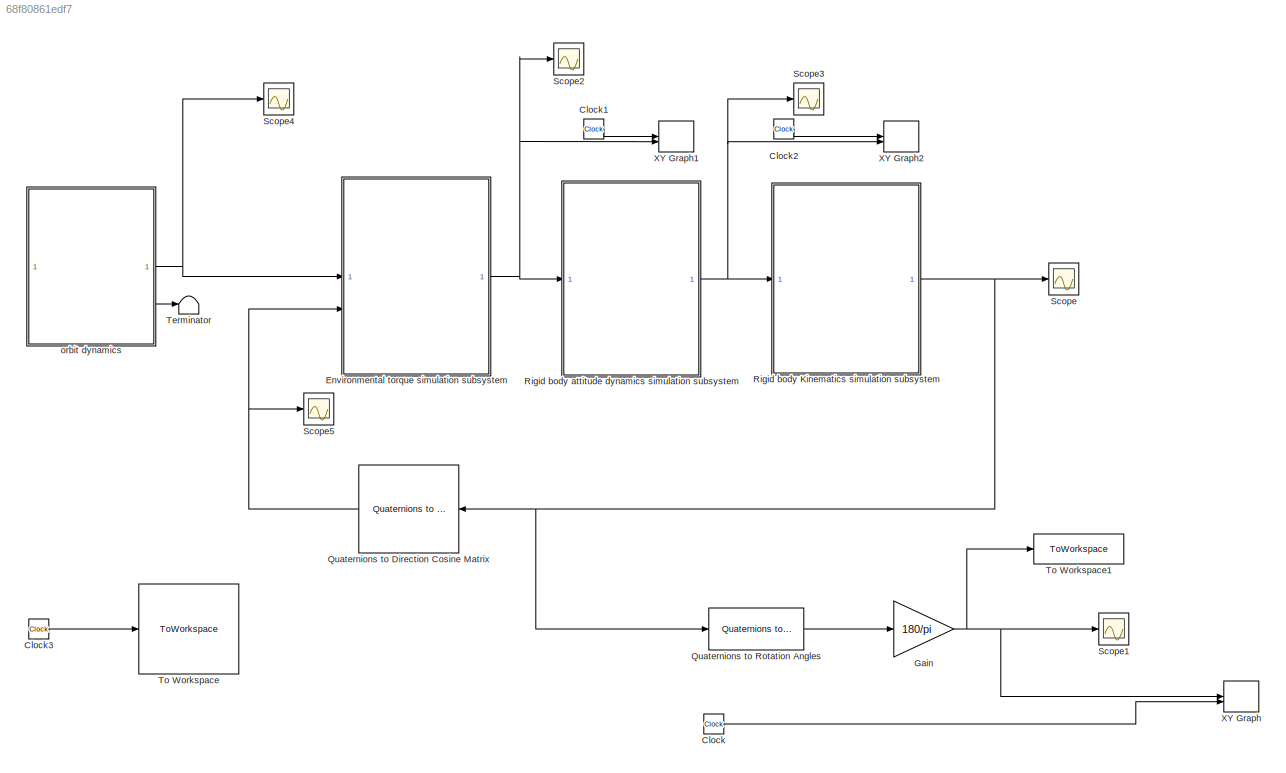
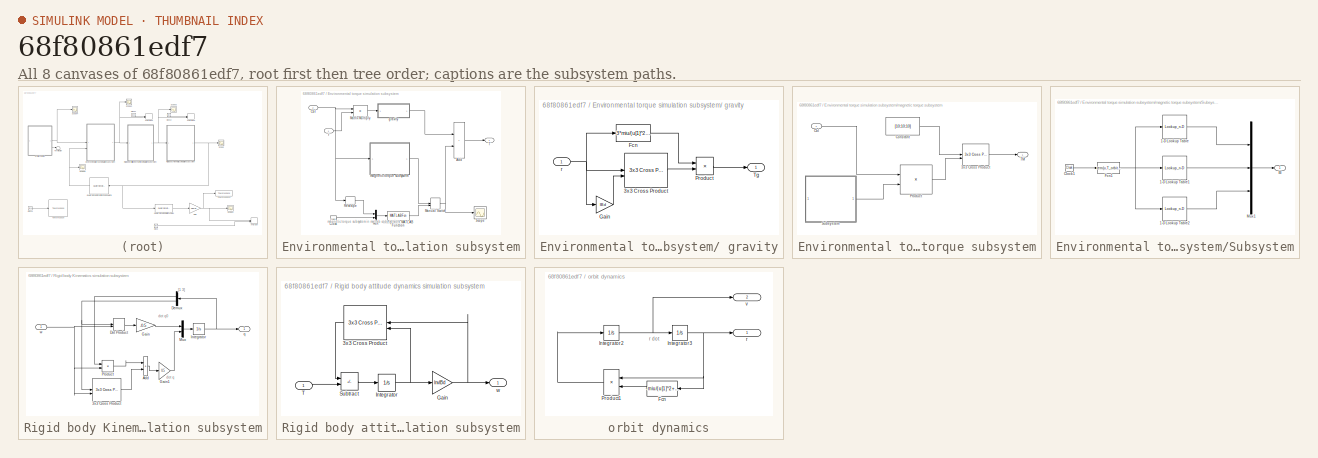
[diagram: thumbnail index - all 8 canvases of the model, root first then tree order]
MODEL slx_68f80861edf7
KIND model
CONFIG AbsTol = auto
CONFIG EnableMultiTasking = off
CONFIG FixedStep = auto
CONFIG InitFcn = run data_initialize.m
CONFIG MaxStep = auto
CONFIG MinStep = auto
CONFIG RelTol = 1e-3
CONFIG SampleTimeConstraint = Unconstrained
CONFIG SolverName = VariableStepAuto
CONFIG StartTime = 0.0
CONFIG StopFcn = figure;\nsubplot(3,1,1);\nplot(out.t,out.error_anles(:,1));\nylabel('yaw(deg)');\nxlabel('simtime(s)');\n\nsubplot(3,1,2);\nplot(out.t,out.error_anles(:,2));\nylabel('pitch(deg)');\nxlabel('simtime(s)');\n\nsubplot(3,1,3);\nplot(out.t,out.error_anles(:,3));\nylabel('roll(deg)');\nxlabel('simtime(s)');\n
CONFIG StopTime = 3600
BLOCK [Clock] Clock
BLOCK [Clock] Clock1
BLOCK [Clock] Clock2
BLOCK [Clock] Clock3
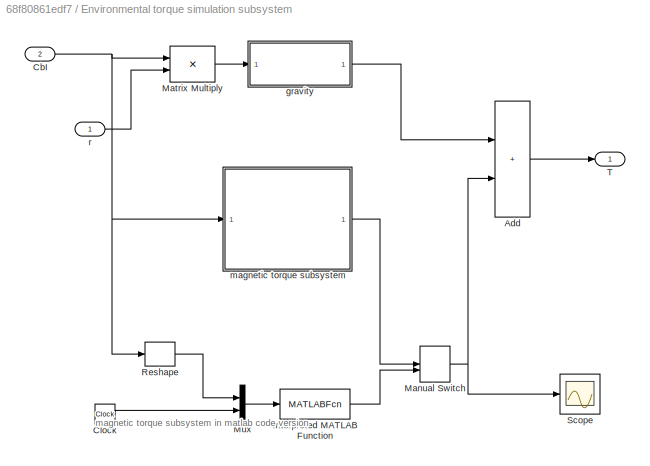
BLOCK [SubSystem] Environmental torque simulation subsystem
BLOCK [SubSystem] Environmental torque simulation subsystem/ gravity
BLOCK [Reference] Environmental torque simulation subsystem/ gravity/3x3 Cross Product  REF=sharedutil/3x3 Cross Product
  LibrarySourceBlock = aerolibutil/3x3 Cross Product
  SourceBlock = sharedutil/3x3 Cross Product
  SourceType = CrossProduct
BLOCK [Fcn] Environmental torque simulation subsystem/ gravity/Fcn
  Expr = 3*miu/(u[1]^2+u[2]^2+u[3]^2)^2.5
BLOCK [Gain] Environmental torque simulation subsystem/ gravity/Gain
  Gain = IBd
  Multiplication = Matrix(K*u)
BLOCK [Product] Environmental torque simulation subsystem/ gravity/Product
BLOCK [Outport] Environmental torque simulation subsystem/ gravity/Tg
BLOCK [Inport] Environmental torque simulation subsystem/ gravity/r
BLOCK [Sum] Environmental torque simulation subsystem/Add
  IconShape = rectangular
BLOCK [Inport] Environmental torque simulation subsystem/CbI
  Port = 2
BLOCK [Clock] Environmental torque simulation subsystem/Clock
BLOCK [MATLABFcn] Environmental torque simulation subsystem/Interpreted MATLAB Function
  MATLABFcn = magnetic_Torque(u)
  OutputDimensions = 3
BLOCK [ManualSwitch] Environmental torque simulation subsystem/Manual Switch
BLOCK [Product] Environmental torque simulation subsystem/Matrix Multiply
  Multiplication = Matrix(*)
BLOCK [Mux] Environmental torque simulation subsystem/Mux
  DisplayOption = bar
  Inputs = 2
BLOCK [Reshape] Environmental torque simulation subsystem/Reshape
BLOCK [Scope] Environmental torque simulation subsystem/Scope
  Floating = off
  NumInputPorts = 2
  ScopeSpecificationString = Simulink.scopes.TimeScopeBlockCfg('CurrentConfiguration', extmgr.ConfigurationSet(extmgr.Configuration('Core','General UI',true),extmgr.Configuration('Core','Source UI',true),extmgr.Configuration('Sources','WiredSimulink',true,'DataLoggingVariableName','ScopeData2'),extmgr.Configuration('Visuals','Time Domain',true,'SerializedDisplays',{struct('MinYLimReal','-0.00058','MaxYLimReal','0.00055','YLab...<+1543ch>
BLOCK [Outport] Environmental torque simulation subsystem/T
BLOCK [SubSystem] Environmental torque simulation subsystem/magnetic torque subsystem
BLOCK [Reference] Environmental torque simulation subsystem/magnetic torque subsystem/3x3 Cross Product  REF=sharedutil/3x3 Cross Product
  LibrarySourceBlock = aerolibutil/3x3 Cross Product
  SourceBlock = sharedutil/3x3 Cross Product
  SourceType = CrossProduct
BLOCK [Inport] Environmental torque simulation subsystem/magnetic torque subsystem/CbI
BLOCK [Constant] Environmental torque simulation subsystem/magnetic torque subsystem/Constant
  Value = [10;10;10]
BLOCK [Product] Environmental torque simulation subsystem/magnetic torque subsystem/Product
  Multiplication = Matrix(*)
BLOCK [SubSystem] Environmental torque simulation subsystem/magnetic torque subsystem/Subsystem
BLOCK [Lookup_n-D] Environmental torque simulation subsystem/magnetic torque subsystem/Subsystem/1-D Lookup Table
  BreakpointsForDimension1 = [1 2 3 4 5 6 7 8 9 10 11 12 13 14 15 16 17 18 19 20 21 22 23 24 25 26 27 28 29 30 31 32 33 34 35 36 37 38 39 40 41 42 43 44 45 46 47 48 49 50 51 52 53 54 55 56 57 58 59 60 61 62 63 64 65 66 67 68 69 70 71 72 73 74 75 76 77 78 79 80 81 82 83 84 85 86 87 88 89 90 91 92 93 94 95 96 97 98 99 100 101 102 103 104 105 106 107 108 109 110 111 112 113 114 115 116 117 118 119 120 121 122 123 124 125 126 127...<+725ch>  <repeated x3 — deduplicated; at blocks: 1-D Lookup Table, 1-D Lookup Table1, 1-D Lookup Table2>
  InputPortMap = u0
  InternalRulePriority = Speed
  InterpMethod = Linear Lagrange
  NumberOfTableDimensions = 1
  RndMeth = Simplest
  Table = [-2.55122059735e-05;-2.53831368732e-05;-2.52235856156e-05;-2.50340039571e-05;-2.48149904855e-05;-2.45672896141e-05;-2.42917889233e-05;-2.39895148346e-05;-2.36616266287e-05;-2.33094088488e-05;-2.29342621597e-05;-2.53777161388e-05;-2.51118086265e-05;-2.48212361178e-05;-2.4506733135e-05;-2.41691136071e-05;-2.38092685829e-05;-2.34281630635e-05;-2.30268319106e-05;-2.26063748081e-05;-2.21679502833e-05;-...<+5116ch>
BLOCK [Lookup_n-D] Environmental torque simulation subsystem/magnetic torque subsystem/Subsystem/1-D Lookup Table1
  InputPortMap = u0
  InternalRulePriority = Speed
  InterpMethod = Linear Lagrange
  NumberOfTableDimensions = 1
  RndMeth = Simplest
  Table = [5.3943408503e-06;5.451945977e-06;5.5099840032e-06;5.5686785233e-06;5.6282573934e-06;5.6889497235e-06;5.7509828588e-06;5.8145793907e-06;5.8799542372e-06;5.94731183e-06;6.0168434444e-06;4.7087073539e-06;4.7375390485e-06;4.7708591853e-06;4.8088064599e-06;4.8514966586e-06;4.8990214362e-06;4.9514473778e-06;5.0088153506e-06;5.0711401447e-06;5.1384103978e-06;5.2105887907e-06;5.2876124951e-06;5.369393851...<+4824ch>
BLOCK [Lookup_n-D] Environmental torque simulation subsystem/magnetic torque subsystem/Subsystem/1-D Lookup Table2
  InputPortMap = u0
  InternalRulePriority = Speed
  InterpMethod = Linear Lagrange
  NumberOfTableDimensions = 1
  RndMeth = Simplest
  Table = [-4.961439257e-07;-1.7357945627e-06;-2.9641301952e-06;-4.1787546858e-06;-5.3773102582e-06;-6.5574946903e-06;-7.7170784681e-06;-8.8539216579e-06;-9.9659902549e-06;-1.10513717659e-05;-1.21082897926e-05;-1.07596031871e-05;-1.19663117919e-05;-1.31540841681e-05;-1.43212395271e-05;-1.54661580047e-05;-1.65872892927e-05;-1.76831612531e-05;-1.87523883599e-05;-1.9793679804e-05;-2.08058470856e-05;-2.17878109...<+5224ch>
BLOCK [Outport] Environmental torque simulation subsystem/magnetic torque subsystem/Subsystem/BI
BLOCK [Clock] Environmental torque simulation subsystem/magnetic torque subsystem/Subsystem/Clock1
BLOCK [Fcn] Environmental torque simulation subsystem/magnetic torque subsystem/Subsystem/Fcn1
  Expr = rem(u,T_orbit)*308/T_orbit
BLOCK [Mux] Environmental torque simulation subsystem/magnetic torque subsystem/Subsystem/Mux1
  DisplayOption = bar
  Inputs = 3
BLOCK [Outport] Environmental torque simulation subsystem/magnetic torque subsystem/TM
BLOCK [Inport] Environmental torque simulation subsystem/r
  PortDimensions = 3
BLOCK [Gain] Gain
  Gain = 180/pi
BLOCK [Reference] Quaternions to Direction Cosine Matrix  REF=sharedtransform/Quaternions to 
Direction Cosine Matrix
  LibrarySourceBlock = aerolibtransform2/Quaternions to \nDirection Cosine Matrix
  SourceBlock = sharedtransform/Quaternions to \nDirection Cosine Matrix
  SourceType = Quaternion2DCM
BLOCK [Reference] Quaternions to Rotation Angles  REF=sharedtransform/Quaternions to Rotation Angles
  AttributesFormatString = Rotation Order: %<rotationOrder>
  LibrarySourceBlock = aerolibtransform2/Quaternions to Rotation Angles
  SourceBlock = sharedtransform/Quaternions to Rotation Angles
  SourceType = Quat2Ang
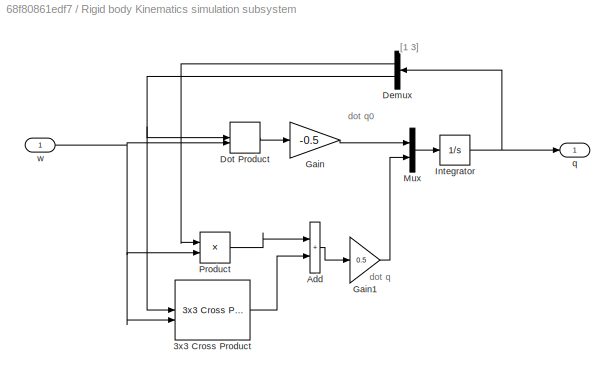
BLOCK [SubSystem] Rigid body Kinematics simulation subsystem
BLOCK [Reference] Rigid body Kinematics simulation subsystem/3x3 Cross Product  REF=sharedutil/3x3 Cross Product
  LibrarySourceBlock = aerolibutil/3x3 Cross Product
  SourceBlock = sharedutil/3x3 Cross Product
  SourceType = CrossProduct
BLOCK [Sum] Rigid body Kinematics simulation subsystem/Add
  IconShape = rectangular
BLOCK [Demux] Rigid body Kinematics simulation subsystem/Demux
  Outputs = 2
BLOCK [DotProduct] Rigid body Kinematics simulation subsystem/Dot Product
  OutDataTypeStr = Inherit: Inherit via internal rule
BLOCK [Gain] Rigid body Kinematics simulation subsystem/Gain
  Gain = -0.5
BLOCK [Gain] Rigid body Kinematics simulation subsystem/Gain1
  Gain = 0.5
BLOCK [Integrator] Rigid body Kinematics simulation subsystem/Integrator
  InitialCondition = Qb0
BLOCK [Mux] Rigid body Kinematics simulation subsystem/Mux
  DisplayOption = bar
  Inputs = 2
BLOCK [Product] Rigid body Kinematics simulation subsystem/Product
BLOCK [Outport] Rigid body Kinematics simulation subsystem/q
BLOCK [Inport] Rigid body Kinematics simulation subsystem/w
  PortDimensions = 3
BLOCK [SubSystem] Rigid body attitude dynamics simulation subsystem
BLOCK [Reference] Rigid body attitude dynamics simulation subsystem/3x3 Cross Product  REF=sharedutil/3x3 Cross Product
  LibrarySourceBlock = aerolibutil/3x3 Cross Product
  SourceBlock = sharedutil/3x3 Cross Product
  SourceType = CrossProduct
BLOCK [Gain] Rigid body attitude dynamics simulation subsystem/Gain
  Gain = InvIBd
  Multiplication = Matrix(K*u)
BLOCK [Integrator] Rigid body attitude dynamics simulation subsystem/Integrator
  InitialCondition = Hb0
BLOCK [Sum] Rigid body attitude dynamics simulation subsystem/Subtract
  IconShape = rectangular
  Inputs = -+
BLOCK [Inport] Rigid body attitude dynamics simulation subsystem/T
BLOCK [Outport] Rigid body attitude dynamics simulation subsystem/w
BLOCK [Scope] Scope
  Floating = off
  NumInputPorts = 1
  ScopeSpecificationString = Simulink.scopes.TimeScopeBlockCfg('CurrentConfiguration', extmgr.ConfigurationSet(extmgr.Configuration('Core','General UI',true),extmgr.Configuration('Core','Source UI',true),extmgr.Configuration('Sources','WiredSimulink',true),extmgr.Configuration('Visuals','Time Domain',true,'SerializedDisplays',{struct('MinYLimReal','-1.08023','MaxYLimReal','1.23114','YLabelReal','','MinYLimMag','0.00000','MaxY...<+1562ch>
BLOCK [Scope] Scope1
  Floating = off
  NumInputPorts = 1
  ScopeSpecificationString = Simulink.scopes.TimeScopeBlockCfg('CurrentConfiguration', extmgr.ConfigurationSet(extmgr.Configuration('Core','General UI',true),extmgr.Configuration('Core','Source UI',true),extmgr.Configuration('Sources','WiredSimulink',true,'DataLoggingVariableName','ScopeData1'),extmgr.Configuration('Visuals','Time Domain',true,'SerializedDisplays',{struct('MinYLimReal','-200','MaxYLimReal','200','YLabelReal',...<+1494ch>
BLOCK [Scope] Scope2
  Floating = off
  NumInputPorts = 1
  ScopeSpecificationString = Simulink.scopes.TimeScopeBlockCfg('CurrentConfiguration', extmgr.ConfigurationSet(extmgr.Configuration('Core','General UI',true),extmgr.Configuration('Core','Source UI',true),extmgr.Configuration('Sources','WiredSimulink',true,'DataLoggingVariableName','ScopeData1'),extmgr.Configuration('Visuals','Time Domain',true,'SerializedDisplays',{struct('MinYLimReal','-0.00059','MaxYLimReal','0.00055','YLab...<+1450ch>
BLOCK [Scope] Scope3
  Floating = off
  NumInputPorts = 1
  ScopeSpecificationString = Simulink.scopes.TimeScopeBlockCfg('CurrentConfiguration', extmgr.ConfigurationSet(extmgr.Configuration('Core','General UI',true),extmgr.Configuration('Core','Source UI',true),extmgr.Configuration('Sources','WiredSimulink',true,'DataLoggingVariableName','ScopeData2'),extmgr.Configuration('Visuals','Time Domain',true,'SerializedDisplays',{struct('MinYLimReal','-0.00392','MaxYLimReal','0.00432','YLab...<+1477ch>
BLOCK [Scope] Scope4
  Floating = off
  NumInputPorts = 1
  ScopeSpecificationString = Simulink.scopes.TimeScopeBlockCfg('CurrentConfiguration', extmgr.ConfigurationSet(extmgr.Configuration('Core','General UI',true),extmgr.Configuration('Core','Source UI',true),extmgr.Configuration('Sources','WiredSimulink',true,'DataLoggingVariableName','ScopeData1'),extmgr.Configuration('Visuals','Time Domain',true,'SerializedDisplays',{struct('MinYLimReal','-9103024.19121','MaxYLimReal','9125711....<+1465ch>
BLOCK [Scope] Scope5
  Floating = off
  NumInputPorts = 1
  ScopeSpecificationString = Simulink.scopes.TimeScopeBlockCfg('CurrentConfiguration', extmgr.ConfigurationSet(extmgr.Configuration('Core','General UI',true),extmgr.Configuration('Core','Source UI',true),extmgr.Configuration('Sources','WiredSimulink',true,'DataLoggingVariableName','ScopeData3'),extmgr.Configuration('Visuals','Time Domain',true,'SerializedDisplays',{struct('MinYLimReal','-1.24944','MaxYLimReal','1.24994','YLab...<+1822ch>
BLOCK [Terminator] Terminator
BLOCK [ToWorkspace] To Workspace
  FixptAsFi = on
  MaxDataPoints = inf
  SampleTime = -1
  VariableName = t
BLOCK [ToWorkspace] To Workspace1
  FixptAsFi = on
  MaxDataPoints = inf
  SampleTime = -1
  VariableName = error_anles
BLOCK [Record] XY Graph
  CompatibilityTag = XY
  FileSettingsInternal = {"entries":[{"content":{"excelSettings":{"content":{},"type":"Streamout.ExcelSettings"}},"type":"Streamout.FileSettingStorage","uuid":"d5935534-3018-4682-9264-9e126ec8adf6"}],"packageUris":["http://schema.mathworks.com/mf0/streamout_blocks/R2020a"],"version":"1.0"}
  Layout = [1 1]
  SignalsInternal = {"entries":[{"content":{"signals":[{"content":{"blockPath":["satsim/XY Graph"],"channel":[],"dimensions":[3],"domain":"satsim/XY Graph","hasChildren":true,"lineColor":"#fe330a","plots":[],"port":1,"sid":[""],"signalID":166,"signalName":"Gain"},"type":"RecordBlkView.Signal","uuid":"ff8d8c7c-5dc9-4f5c-8804-467ea547fb30"},{"content":{"blockPath":["satsim/XY Graph"],"channel":[1],"dimensions":[3],"dom...<+1218ch>
  VisualizationBindings = {"xyplotplugin":{"info":[{"series":[{"bindingParametersList":[{"parameter":"X-Axis","signalID":171,"signalName":"Clock"},{"parameter":"Y-Axis","signalID":167,"signalName":"Gain(1)"}],"seriesID":65218},{"bindingParametersList":[{"parameter":"X-Axis","signalID":171,"signalName":"Clock"},{"parameter":"Y-Axis","signalID":223,"signalName":"Gain(2)"}],"seriesID":37351},{"bindingParametersList":[{"parame...<+149ch>
BLOCK [Record] XY Graph1
  CompatibilityTag = XY
  FileSettingsInternal = {"entries":[{"content":{"excelSettings":{"content":{},"type":"Streamout.ExcelSettings"}},"type":"Streamout.FileSettingStorage","uuid":"255aa934-7037-4e8a-b86c-47c5749866d0"}],"packageUris":["http://schema.mathworks.com/mf0/streamout_blocks/R2020a"],"version":"1.0"}
  Layout = [1 1]
  SignalsInternal = {"entries":[{"content":{"signals":[{"content":{"blockPath":["satsim/XY Graph1"],"channel":[],"dimensions":[1],"domain":"satsim/XY Graph1","lineColor":"#139fff","plots":[1],"port":1,"sid":[""],"signalID":175,"signalName":"Clock1"},"type":"RecordBlkView.Signal","uuid":"f30088d5-5af3-48de-8442-de16e8626a94"},{"content":{"blockPath":["satsim/XY Graph1"],"channel":[],"dimensions":[3],"domain":"satsim/X...<+1377ch>
  VisualizationBindings = {"xyplotplugin":{"info":[{"series":[{"bindingParametersList":[{"parameter":"X-Axis","signalID":175,"signalName":"Clock1"},{"parameter":"Y-Axis","signalID":225,"signalName":"Environmental torque simulation subsystem(2)"}],"seriesID":232},{"bindingParametersList":[{"parameter":"X-Axis","signalID":175,"signalName":"Clock1"},{"parameter":"Y-Axis","signalID":180,"signalName":"Environmental torque simul...<+261ch>
BLOCK [Record] XY Graph2
  CompatibilityTag = XY
  FileSettingsInternal = {"entries":[{"content":{"excelSettings":{"content":{},"type":"Streamout.ExcelSettings"}},"type":"Streamout.FileSettingStorage","uuid":"a904b502-5531-4921-b81d-345613b13fcd"}],"packageUris":["http://schema.mathworks.com/mf0/streamout_blocks/R2020a"],"version":"1.0"}
  Layout = [1 1]
  SignalsInternal = {"entries":[{"content":{"signals":[{"content":{"blockPath":["satsim/XY Graph2"],"channel":[],"dimensions":[1],"domain":"satsim/XY Graph2","lineColor":"#139fff","plots":[1],"port":1,"sid":[""],"signalID":184,"signalName":"Clock2"},"type":"RecordBlkView.Signal","uuid":"078e9baf-7ef4-4016-bcd0-3751340707a6"},{"content":{"blockPath":["satsim/XY Graph2"],"channel":[],"dimensions":[3],"domain":"satsim/X...<+1409ch>
  VisualizationBindings = {"xyplotplugin":{"info":[{"series":[{"bindingParametersList":[{"parameter":"X-Axis","signalID":184,"signalName":"Clock2"},{"parameter":"Y-Axis","signalID":228,"signalName":"Rigid body attitude dynamics simulation subsystem(3)"}],"seriesID":16914},{"bindingParametersList":[{"parameter":"X-Axis","signalID":184,"signalName":"Clock2"},{"parameter":"Y-Axis","signalID":227,"signalName":"Rigid body attit...<+285ch>
BLOCK [SubSystem] orbit dynamics
BLOCK [Fcn] orbit dynamics/Fcn
  Expr = -miu/(u[1]^2+u[2]^2+u[3]^2)^1.5
BLOCK [Integrator] orbit dynamics/Integrator2
  InitialCondition = v0
BLOCK [Integrator] orbit dynamics/Integrator3
  InitialCondition = r0
BLOCK [Product] orbit dynamics/Product1
BLOCK [Outport] orbit dynamics/r
BLOCK [Outport] orbit dynamics/v
  Port = 2
ANNOTATION Environmental torque simulation subsystem: magnetic torque subsystem in matlab code version
ANNOTATION Rigid body Kinematics simulation subsystem: [1 3]
ANNOTATION Rigid body Kinematics simulation subsystem: dot q
ANNOTATION Rigid body Kinematics simulation subsystem: dot q0
ANNOTATION orbit dynamics: r dot
LINE Clock1:1 -> XY Graph1:1
LINE Clock2:1 -> XY Graph2:1
LINE Clock3:1 -> To Workspace:1
LINE Clock:1 -> XY Graph:2
LINE Environmental torque simulation subsystem/ gravity/3x3 Cross Product:1 -> Environmental torque simulation subsystem/ gravity/Product:2
LINE Environmental torque simulation subsystem/ gravity/Fcn:1 -> Environmental torque simulation subsystem/ gravity/Product:1
LINE Environmental torque simulation subsystem/ gravity/Gain:1 -> Environmental torque simulation subsystem/ gravity/3x3 Cross Product:2
LINE Environmental torque simulation subsystem/ gravity/Product:1 -> Environmental torque simulation subsystem/ gravity/Tg:1
NET Environmental torque simulation subsystem/ gravity/r:1 -> Environmental torque simulation subsystem/ gravity/3x3 Cross Product:1, Environmental torque simulation subsystem/ gravity/Fcn:1, Environmental torque simulation subsystem/ gravity/Gain:1
LINE Environmental torque simulation subsystem/ gravity:1 -> Environmental torque simulation subsystem/Add:1
LINE Environmental torque simulation subsystem/Add:1 -> Environmental torque simulation subsystem/T:1
NET Environmental torque simulation subsystem/CbI:1 -> Environmental torque simulation subsystem/Matrix Multiply:1, Environmental torque simulation subsystem/Reshape:1, Environmental torque simulation subsystem/magnetic torque subsystem:1
LINE Environmental torque simulation subsystem/Clock:1 -> Environmental torque simulation subsystem/Mux:2
LINE Environmental torque simulation subsystem/Interpreted MATLAB Function:1 -> Environmental torque simulation subsystem/Manual Switch:2
NET Environmental torque simulation subsystem/Manual Switch:1 -> Environmental torque simulation subsystem/Add:2, Environmental torque simulation subsystem/Scope:1
LINE Environmental torque simulation subsystem/Matrix Multiply:1 -> Environmental torque simulation subsystem/ gravity:1
LINE Environmental torque simulation subsystem/Mux:1 -> Environmental torque simulation subsystem/Interpreted MATLAB Function:1
LINE Environmental torque simulation subsystem/Reshape:1 -> Environmental torque simulation subsystem/Mux:1
LINE Environmental torque simulation subsystem/magnetic torque subsystem/3x3 Cross Product:1 -> Environmental torque simulation subsystem/magnetic torque subsystem/TM:1
LINE Environmental torque simulation subsystem/magnetic torque subsystem/CbI:1 -> Environmental torque simulation subsystem/magnetic torque subsystem/Product:1
LINE Environmental torque simulation subsystem/magnetic torque subsystem/Constant:1 -> Environmental torque simulation subsystem/magnetic torque subsystem/3x3 Cross Product:1
LINE Environmental torque simulation subsystem/magnetic torque subsystem/Product:1 -> Environmental torque simulation subsystem/magnetic torque subsystem/3x3 Cross Product:2
LINE Environmental torque simulation subsystem/magnetic torque subsystem/Subsystem/1-D Lookup Table1:1 -> Environmental torque simulation subsystem/magnetic torque subsystem/Subsystem/Mux1:2
LINE Environmental torque simulation subsystem/magnetic torque subsystem/Subsystem/1-D Lookup Table2:1 -> Environmental torque simulation subsystem/magnetic torque subsystem/Subsystem/Mux1:3
LINE Environmental torque simulation subsystem/magnetic torque subsystem/Subsystem/1-D Lookup Table:1 -> Environmental torque simulation subsystem/magnetic torque subsystem/Subsystem/Mux1:1
LINE Environmental torque simulation subsystem/magnetic torque subsystem/Subsystem/Clock1:1 -> Environmental torque simulation subsystem/magnetic torque subsystem/Subsystem/Fcn1:1
NET Environmental torque simulation subsystem/magnetic torque subsystem/Subsystem/Fcn1:1 -> Environmental torque simulation subsystem/magnetic torque subsystem/Subsystem/1-D Lookup Table1:1, Environmental torque simulation subsystem/magnetic torque subsystem/Subsystem/1-D Lookup Table2:1, Environmental torque simulation subsystem/magnetic torque subsystem/Subsystem/1-D Lookup Table:1
LINE Environmental torque simulation subsystem/magnetic torque subsystem/Subsystem/Mux1:1 -> Environmental torque simulation subsystem/magnetic torque subsystem/Subsystem/BI:1
LINE Environmental torque simulation subsystem/magnetic torque subsystem/Subsystem:1 -> Environmental torque simulation subsystem/magnetic torque subsystem/Product:2
LINE Environmental torque simulation subsystem/magnetic torque subsystem:1 -> Environmental torque simulation subsystem/Manual Switch:1
LINE Environmental torque simulation subsystem/r:1 -> Environmental torque simulation subsystem/Matrix Multiply:2
NET Environmental torque simulation subsystem:1 -> Rigid body attitude dynamics simulation subsystem:1, Scope2:1, XY Graph1:2
NET Gain:1 -> Scope1:1, To Workspace1:1, XY Graph:1
NET Quaternions to Direction Cosine Matrix:1 -> Environmental torque simulation subsystem:2, Scope5:1
LINE Quaternions to Rotation Angles:1 -> Gain:1
LINE Rigid body Kinematics simulation subsystem/3x3 Cross Product:1 -> Rigid body Kinematics simulation subsystem/Add:2
LINE Rigid body Kinematics simulation subsystem/Add:1 -> Rigid body Kinematics simulation subsystem/Gain1:1
LINE Rigid body Kinematics simulation subsystem/Demux:1 -> Rigid body Kinematics simulation subsystem/Product:1
NET Rigid body Kinematics simulation subsystem/Demux:2 -> Rigid body Kinematics simulation subsystem/3x3 Cross Product:1, Rigid body Kinematics simulation subsystem/Dot Product:1
LINE Rigid body Kinematics simulation subsystem/Dot Product:1 -> Rigid body Kinematics simulation subsystem/Gain:1
LINE Rigid body Kinematics simulation subsystem/Gain1:1 -> Rigid body Kinematics simulation subsystem/Mux:2
LINE Rigid body Kinematics simulation subsystem/Gain:1 -> Rigid body Kinematics simulation subsystem/Mux:1
NET Rigid body Kinematics simulation subsystem/Integrator:1 -> Rigid body Kinematics simulation subsystem/Demux:1, Rigid body Kinematics simulation subsystem/q:1
LINE Rigid body Kinematics simulation subsystem/Mux:1 -> Rigid body Kinematics simulation subsystem/Integrator:1
LINE Rigid body Kinematics simulation subsystem/Product:1 -> Rigid body Kinematics simulation subsystem/Add:1
NET Rigid body Kinematics simulation subsystem/w:1 -> Rigid body Kinematics simulation subsystem/3x3 Cross Product:2, Rigid body Kinematics simulation subsystem/Dot Product:2, Rigid body Kinematics simulation subsystem/Product:2
NET Rigid body Kinematics simulation subsystem:1 -> Quaternions to Direction Cosine Matrix:1, Quaternions to Rotation Angles:1, Scope:1
LINE Rigid body attitude dynamics simulation subsystem/3x3 Cross Product:1 -> Rigid body attitude dynamics simulation subsystem/Subtract:1
NET Rigid body attitude dynamics simulation subsystem/Gain:1 -> Rigid body attitude dynamics simulation subsystem/3x3 Cross Product:1, Rigid body attitude dynamics simulation subsystem/w:1
NET Rigid body attitude dynamics simulation subsystem/Integrator:1 -> Rigid body attitude dynamics simulation subsystem/3x3 Cross Product:2, Rigid body attitude dynamics simulation subsystem/Gain:1
LINE Rigid body attitude dynamics simulation subsystem/Subtract:1 -> Rigid body attitude dynamics simulation subsystem/Integrator:1
LINE Rigid body attitude dynamics simulation subsystem/T:1 -> Rigid body attitude dynamics simulation subsystem/Subtract:2
NET Rigid body attitude dynamics simulation subsystem:1 -> Rigid body Kinematics simulation subsystem:1, Scope3:1, XY Graph2:2
LINE orbit dynamics/Fcn:1 -> orbit dynamics/Product1:2
NET orbit dynamics/Integrator2:1 -> orbit dynamics/Integrator3:1, orbit dynamics/v:1
NET orbit dynamics/Integrator3:1 -> orbit dynamics/Fcn:1, orbit dynamics/Product1:1, orbit dynamics/r:1
LINE orbit dynamics/Product1:1 -> orbit dynamics/Integrator2:1
NET orbit dynamics:1 -> Environmental torque simulation subsystem:1, Scope4:1
LINE orbit dynamics:2 -> Terminator:1
note: NET lines group one-source signal fan-out (src -> all destinations, sorted); 1:1 wires keep LINE
